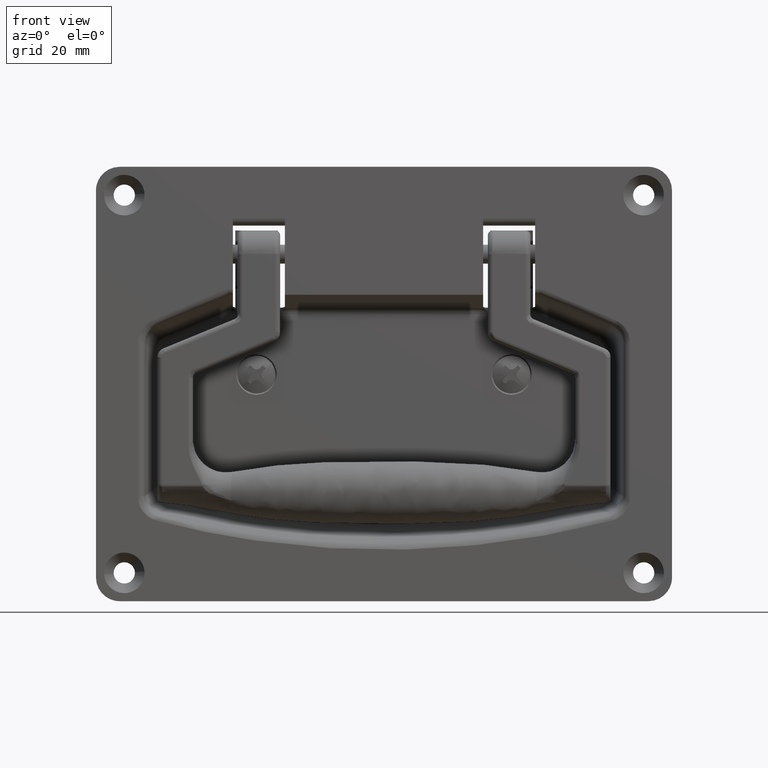
[diagram: clean part render]
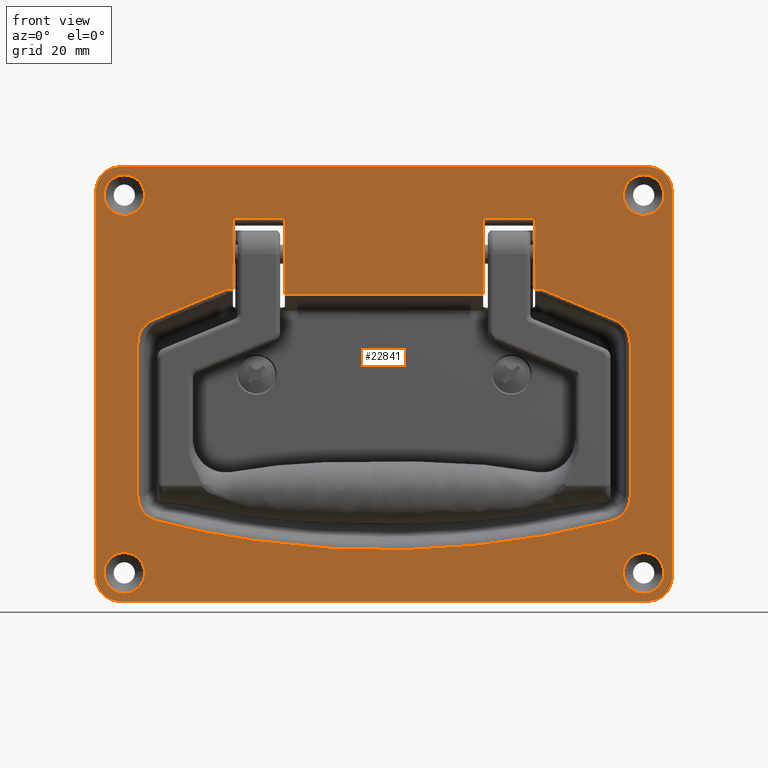
[diagram: same view with one face highlighted and labeled with its STEP entity id]
A machine part, front view. The second image highlights one B-rep face of the part: STEP entity #22841.
In plain terms, the highlighted face is a freeform B-spline surface patch.
Its self-contained STEP definition (entity closure, byte-faithful):
#14363=CARTESIAN_POINT('',(-6.500000000039236,50.713255464931720,-67.162625888071375));
#14364=VERTEX_POINT('',#14363);
#14370=CARTESIAN_POINT('',(-6.500000000000000,55.0,-63.200000000000003));
#14371=VERTEX_POINT('',#14370);
#14372=CARTESIAN_POINT('',(-6.500000000000000,55.0,-63.200000000000003));
#14373=CARTESIAN_POINT('',(-6.500000000000001,51.025120886420012,-63.200000000000017));
#14374=CARTESIAN_POINT('',(-6.500000000039237,50.713255464931727,-67.162625888071375));
#14382=(BOUNDED_CURVE()B_SPLINE_CURVE(2,(#14372,#14373,#14374),.UNSPECIFIED.,.F.,.U.)B_SPLINE_CURVE_WITH_KNOTS((3,3),(0.0,0.236331300609107),.UNSPECIFIED.)CURVE()GEOMETRIC_REPRESENTATION_ITEM()RATIONAL_B_SPLINE_CURVE((1.0,0.723120658632916,0.969723356122440))REPRESENTATION_ITEM(''));
#14383=EDGE_CURVE('',#14371,#14364,#14382,.T.);
#14385=CARTESIAN_POINT('',(-6.500000000039233,59.286744535068280,-67.837374111928625));
#14386=VERTEX_POINT('',#14385);
#14387=CARTESIAN_POINT('',(-6.500000000039233,59.286744535068273,-67.837374111928625));
#14388=CARTESIAN_POINT('',(-6.499999999999999,59.299999999999997,-67.668947460430161));
#14389=CARTESIAN_POINT('',(-6.500000000000000,59.299999999999997,-67.500000000000000));
#14390=CARTESIAN_POINT('',(-6.500000000000000,59.299999999999997,-63.200000000000003));
#14391=CARTESIAN_POINT('',(-6.500000000000000,55.0,-63.200000000000003));
#14399=(BOUNDED_CURVE()B_SPLINE_CURVE(2,(#14387,#14388,#14389,#14390,#14391),.UNSPECIFIED.,.F.,.U.)B_SPLINE_CURVE_WITH_KNOTS((3,2,3),(0.736331300609107,0.750000000000000,1.0),.UNSPECIFIED.)CURVE()GEOMETRIC_REPRESENTATION_ITEM()RATIONAL_B_SPLINE_CURVE((0.969723356122440,0.983986122553632,1.0,0.707106781186547,1.0))REPRESENTATION_ITEM(''));
#14400=EDGE_CURVE('',#14386,#14371,#14399,.T.);
#14433=CARTESIAN_POINT('',(-6.500000000000000,55.0,-71.799999999999997));
#14434=VERTEX_POINT('',#14433);
#14435=CARTESIAN_POINT('',(-6.500000000000000,55.0,-71.799999999999997));
#14436=CARTESIAN_POINT('',(-6.500000000000002,58.974879113579981,-71.799999999999983));
#14437=CARTESIAN_POINT('',(-6.500000000039233,59.286744535068280,-67.837374111928625));
#14445=(BOUNDED_CURVE()B_SPLINE_CURVE(2,(#14435,#14436,#14437),.UNSPECIFIED.,.F.,.U.)B_SPLINE_CURVE_WITH_KNOTS((3,3),(0.500000000000000,0.736331300609107),.UNSPECIFIED.)CURVE()GEOMETRIC_REPRESENTATION_ITEM()RATIONAL_B_SPLINE_CURVE((1.0,0.723120658632916,0.969723356122440))REPRESENTATION_ITEM(''));
#14446=EDGE_CURVE('',#14434,#14386,#14445,.T.);
#14448=CARTESIAN_POINT('',(-6.500000000039237,50.713255464931727,-67.162625888071375));
#14449=CARTESIAN_POINT('',(-6.500000000000001,50.700000000000003,-67.331052539569825));
#14450=CARTESIAN_POINT('',(-6.500000000000000,50.700000000000003,-67.500000000000000));
#14451=CARTESIAN_POINT('',(-6.500000000000000,50.700000000000010,-71.799999999999983));
#14452=CARTESIAN_POINT('',(-6.500000000000000,55.0,-71.799999999999997));
#14460=(BOUNDED_CURVE()B_SPLINE_CURVE(2,(#14448,#14449,#14450,#14451,#14452),.UNSPECIFIED.,.F.,.U.)B_SPLINE_CURVE_WITH_KNOTS((3,2,3),(0.236331300609107,0.250000000000000,0.500000000000000),.UNSPECIFIED.)CURVE()GEOMETRIC_REPRESENTATION_ITEM()RATIONAL_B_SPLINE_CURVE((0.969723356122440,0.983986122553632,1.0,0.707106781186547,1.0))REPRESENTATION_ITEM(''));
#14461=EDGE_CURVE('',#14364,#14434,#14460,.T.);
#14687=CARTESIAN_POINT('',(-6.500000000039234,50.713255464931720,12.837374111928639));
#14688=VERTEX_POINT('',#14687);
#14694=CARTESIAN_POINT('',(-6.500000000000000,55.0,16.800000000000001));
#14695=VERTEX_POINT('',#14694);
#14696=CARTESIAN_POINT('',(-6.500000000000000,55.0,16.800000000000001));
#14697=CARTESIAN_POINT('',(-6.500000000000000,51.025120886420012,16.800000000000011));
#14698=CARTESIAN_POINT('',(-6.500000000039234,50.713255464931720,12.837374111928636));
#14706=(BOUNDED_CURVE()B_SPLINE_CURVE(2,(#14696,#14697,#14698),.UNSPECIFIED.,.F.,.U.)B_SPLINE_CURVE_WITH_KNOTS((3,3),(0.0,0.236331300609107),.UNSPECIFIED.)CURVE()GEOMETRIC_REPRESENTATION_ITEM()RATIONAL_B_SPLINE_CURVE((1.0,0.723120658632916,0.969723356122440))REPRESENTATION_ITEM(''));
#14707=EDGE_CURVE('',#14695,#14688,#14706,.T.);
#14709=CARTESIAN_POINT('',(-6.500000000039234,59.286744535068280,12.162625888071361));
#14710=VERTEX_POINT('',#14709);
#14711=CARTESIAN_POINT('',(-6.500000000039234,59.286744535068280,12.162625888071364));
#14712=CARTESIAN_POINT('',(-6.500000000000000,59.299999999999997,12.331052539569830));
#14713=CARTESIAN_POINT('',(-6.500000000000000,59.299999999999997,12.500000000000000));
#14714=CARTESIAN_POINT('',(-6.500000000000000,59.299999999999997,16.800000000000004));
#14715=CARTESIAN_POINT('',(-6.500000000000000,55.0,16.800000000000001));
#14723=(BOUNDED_CURVE()B_SPLINE_CURVE(2,(#14711,#14712,#14713,#14714,#14715),.UNSPECIFIED.,.F.,.U.)B_SPLINE_CURVE_WITH_KNOTS((3,2,3),(0.736331300609107,0.750000000000000,1.0),.UNSPECIFIED.)CURVE()GEOMETRIC_REPRESENTATION_ITEM()RATIONAL_B_SPLINE_CURVE((0.969723356122440,0.983986122553632,1.0,0.707106781186547,1.0))REPRESENTATION_ITEM(''));
#14724=EDGE_CURVE('',#14710,#14695,#14723,.T.);
#14757=CARTESIAN_POINT('',(-6.500000000000000,55.0,8.200000000000001));
#14758=VERTEX_POINT('',#14757);
#14759=CARTESIAN_POINT('',(-6.500000000000000,55.0,8.200000000000001));
#14760=CARTESIAN_POINT('',(-6.500000000000002,58.974879113579981,8.200000000000001));
#14761=CARTESIAN_POINT('',(-6.500000000039234,59.286744535068280,12.162625888071364));
#14769=(BOUNDED_CURVE()B_SPLINE_CURVE(2,(#14759,#14760,#14761),.UNSPECIFIED.,.F.,.U.)B_SPLINE_CURVE_WITH_KNOTS((3,3),(0.500000000000000,0.736331300609107),.UNSPECIFIED.)CURVE()GEOMETRIC_REPRESENTATION_ITEM()RATIONAL_B_SPLINE_CURVE((1.0,0.723120658632916,0.969723356122440))REPRESENTATION_ITEM(''));
#14770=EDGE_CURVE('',#14758,#14710,#14769,.T.);
#14772=CARTESIAN_POINT('',(-6.500000000039234,50.713255464931727,12.837374111928632));
#14773=CARTESIAN_POINT('',(-6.499999999999999,50.700000000000003,12.668947460430173));
#14774=CARTESIAN_POINT('',(-6.500000000000000,50.700000000000003,12.500000000000000));
#14775=CARTESIAN_POINT('',(-6.500000000000000,50.700000000000010,8.200000000000001));
#14776=CARTESIAN_POINT('',(-6.500000000000000,55.0,8.200000000000001));
#14784=(BOUNDED_CURVE()B_SPLINE_CURVE(2,(#14772,#14773,#14774,#14775,#14776),.UNSPECIFIED.,.F.,.U.)B_SPLINE_CURVE_WITH_KNOTS((3,2,3),(0.236331300609107,0.250000000000000,0.500000000000000),.UNSPECIFIED.)CURVE()GEOMETRIC_REPRESENTATION_ITEM()RATIONAL_B_SPLINE_CURVE((0.969723356122440,0.983986122553632,1.0,0.707106781186547,1.0))REPRESENTATION_ITEM(''));
#14785=EDGE_CURVE('',#14688,#14758,#14784,.T.);
#15015=CARTESIAN_POINT('',(-6.500000000082057,-50.730059036630188,-66.992452790331669));
#15016=VERTEX_POINT('',#15015);
#15022=CARTESIAN_POINT('',(-6.500000000000000,-55.0,-71.799999999999997));
#15023=VERTEX_POINT('',#15022);
#15024=CARTESIAN_POINT('',(-6.500000000082058,-50.730059036630180,-66.992452790331669));
#15025=CARTESIAN_POINT('',(-6.500000000000000,-50.699999999999996,-67.245336284855497));
#15026=CARTESIAN_POINT('',(-6.500000000000000,-50.700000000000003,-67.500000000000000));
#15027=CARTESIAN_POINT('',(-6.500000000000000,-50.700000000000010,-71.799999999999983));
#15028=CARTESIAN_POINT('',(-6.500000000000000,-55.0,-71.799999999999997));
#15036=(BOUNDED_CURVE()B_SPLINE_CURVE(2,(#15024,#15025,#15026,#15027,#15028),.UNSPECIFIED.,.F.,.U.)B_SPLINE_CURVE_WITH_KNOTS((3,2,3),(0.229562473465411,0.250000000000000,0.500000000000000),.UNSPECIFIED.)CURVE()GEOMETRIC_REPRESENTATION_ITEM()RATIONAL_B_SPLINE_CURVE((0.956026754089427,0.976055948274796,1.0,0.707106781186547,1.0))REPRESENTATION_ITEM(''));
#15037=EDGE_CURVE('',#15016,#15023,#15036,.T.);
#15039=CARTESIAN_POINT('',(-6.500000000001966,-59.291979633215071,-67.762508720015006));
#15040=VERTEX_POINT('',#15039);
#15041=CARTESIAN_POINT('',(-6.500000000000000,-55.0,-71.799999999999997));
#15042=CARTESIAN_POINT('',(-6.500000000000000,-59.045036087666190,-71.799999999999997));
#15043=CARTESIAN_POINT('',(-6.500000000001966,-59.291979633215071,-67.762508720015006));
#15051=(BOUNDED_CURVE()B_SPLINE_CURVE(2,(#15041,#15042,#15043),.UNSPECIFIED.,.F.,.U.)B_SPLINE_CURVE_WITH_KNOTS((3,3),(0.500000000000000,0.739332962240764),.UNSPECIFIED.)CURVE()GEOMETRIC_REPRESENTATION_ITEM()RATIONAL_B_SPLINE_CURVE((1.0,0.719603993284577,0.976072041670620))REPRESENTATION_ITEM(''));
#15052=EDGE_CURVE('',#15023,#15040,#15051,.T.);
#15085=CARTESIAN_POINT('',(-6.500000000000000,-55.0,-63.200000000000003));
#15086=VERTEX_POINT('',#15085);
#15087=CARTESIAN_POINT('',(-6.500000000001966,-59.291979633215078,-67.762508720015006));
#15088=CARTESIAN_POINT('',(-6.500000000000000,-59.299999999999997,-67.631376882198964));
#15089=CARTESIAN_POINT('',(-6.500000000000000,-59.299999999999997,-67.500000000000000));
#15090=CARTESIAN_POINT('',(-6.500000000000000,-59.299999999999997,-63.200000000000003));
#15091=CARTESIAN_POINT('',(-6.500000000000000,-55.0,-63.200000000000003));
#15099=(BOUNDED_CURVE()B_SPLINE_CURVE(2,(#15087,#15088,#15089,#15090,#15091),.UNSPECIFIED.,.F.,.U.)B_SPLINE_CURVE_WITH_KNOTS((3,2,3),(0.739332962240763,0.750000000000000,1.0),.UNSPECIFIED.)CURVE()GEOMETRIC_REPRESENTATION_ITEM()RATIONAL_B_SPLINE_CURVE((0.976072041670618,0.987502787901969,1.0,0.707106781186547,1.0))REPRESENTATION_ITEM(''));
#15100=EDGE_CURVE('',#15040,#15086,#15099,.T.);
#15102=CARTESIAN_POINT('',(-6.500000000000000,-55.0,-63.200000000000003));
#15103=CARTESIAN_POINT('',(-6.500000000000001,-51.180849539552284,-63.200000000000017));
#15104=CARTESIAN_POINT('',(-6.500000000082058,-50.730059036630180,-66.992452790331669));
#15112=(BOUNDED_CURVE()B_SPLINE_CURVE(2,(#15102,#15103,#15104),.UNSPECIFIED.,.F.,.U.)B_SPLINE_CURVE_WITH_KNOTS((3,3),(0.0,0.229562473465411),.UNSPECIFIED.)CURVE()GEOMETRIC_REPRESENTATION_ITEM()RATIONAL_B_SPLINE_CURVE((1.0,0.731050832911752,0.956026754089427))REPRESENTATION_ITEM(''));
#15113=EDGE_CURVE('',#15086,#15016,#15112,.T.);
#16813=CARTESIAN_POINT('',(-6.500000000082057,-50.730059036630180,13.007547209668321));
#16814=VERTEX_POINT('',#16813);
#16820=CARTESIAN_POINT('',(-6.500000000000000,-55.0,8.200000000000001));
#16821=VERTEX_POINT('',#16820);
#16822=CARTESIAN_POINT('',(-6.500000000082057,-50.730059036630180,13.007547209668321));
#16823=CARTESIAN_POINT('',(-6.500000000000000,-50.699999999999996,12.754663715144504));
#16824=CARTESIAN_POINT('',(-6.500000000000000,-50.700000000000003,12.500000000000000));
#16825=CARTESIAN_POINT('',(-6.500000000000000,-50.700000000000010,8.200000000000001));
#16826=CARTESIAN_POINT('',(-6.500000000000000,-55.0,8.200000000000001));
#16834=(BOUNDED_CURVE()B_SPLINE_CURVE(2,(#16822,#16823,#16824,#16825,#16826),.UNSPECIFIED.,.F.,.U.)B_SPLINE_CURVE_WITH_KNOTS((3,2,3),(0.229562473465411,0.250000000000000,0.500000000000000),.UNSPECIFIED.)CURVE()GEOMETRIC_REPRESENTATION_ITEM()RATIONAL_B_SPLINE_CURVE((0.956026754089427,0.976055948274796,1.0,0.707106781186547,1.0))REPRESENTATION_ITEM(''));
#16835=EDGE_CURVE('',#16814,#16821,#16834,.T.);
#16837=CARTESIAN_POINT('',(-6.500000000001966,-59.291979633215071,12.237491279985001));
#16838=VERTEX_POINT('',#16837);
#16839=CARTESIAN_POINT('',(-6.500000000000000,-55.0,8.200000000000001));
#16840=CARTESIAN_POINT('',(-6.500000000000001,-59.045036087666134,8.200000000000001));
#16841=CARTESIAN_POINT('',(-6.500000000001966,-59.291979633215064,12.237491279985003));
#16849=(BOUNDED_CURVE()B_SPLINE_CURVE(2,(#16839,#16840,#16841),.UNSPECIFIED.,.F.,.U.)B_SPLINE_CURVE_WITH_KNOTS((3,3),(0.500000000000000,0.739332962240761),.UNSPECIFIED.)CURVE()GEOMETRIC_REPRESENTATION_ITEM()RATIONAL_B_SPLINE_CURVE((1.0,0.719603993284580,0.976072041670615))REPRESENTATION_ITEM(''));
#16850=EDGE_CURVE('',#16821,#16838,#16849,.T.);
#16883=CARTESIAN_POINT('',(-6.500000000000000,-55.0,16.800000000000001));
#16884=VERTEX_POINT('',#16883);
#16885=CARTESIAN_POINT('',(-6.500000000001966,-59.291979633215071,12.237491279984996));
#16886=CARTESIAN_POINT('',(-6.500000000000001,-59.300000000000004,12.368623117801029));
#16887=CARTESIAN_POINT('',(-6.500000000000000,-59.299999999999997,12.500000000000000));
#16888=CARTESIAN_POINT('',(-6.500000000000000,-59.299999999999997,16.800000000000004));
#16889=CARTESIAN_POINT('',(-6.500000000000000,-55.0,16.800000000000001));
#16897=(BOUNDED_CURVE()B_SPLINE_CURVE(2,(#16885,#16886,#16887,#16888,#16889),.UNSPECIFIED.,.F.,.U.)B_SPLINE_CURVE_WITH_KNOTS((3,2,3),(0.739332962240762,0.750000000000000,1.0),.UNSPECIFIED.)CURVE()GEOMETRIC_REPRESENTATION_ITEM()RATIONAL_B_SPLINE_CURVE((0.976072041670617,0.987502787901969,1.0,0.707106781186547,1.0))REPRESENTATION_ITEM(''));
#16898=EDGE_CURVE('',#16838,#16884,#16897,.T.);
#16900=CARTESIAN_POINT('',(-6.500000000000000,-55.0,16.800000000000001));
#16901=CARTESIAN_POINT('',(-6.500000000000000,-51.180849539552291,16.800000000000004));
#16902=CARTESIAN_POINT('',(-6.500000000082058,-50.730059036630173,13.007547209668322));
#16910=(BOUNDED_CURVE()B_SPLINE_CURVE(2,(#16900,#16901,#16902),.UNSPECIFIED.,.F.,.U.)B_SPLINE_CURVE_WITH_KNOTS((3,3),(0.0,0.229562473465411),.UNSPECIFIED.)CURVE()GEOMETRIC_REPRESENTATION_ITEM()RATIONAL_B_SPLINE_CURVE((1.0,0.731050832911752,0.956026754089427))REPRESENTATION_ITEM(''));
#16911=EDGE_CURVE('',#16884,#16814,#16910,.T.);
#17199=CARTESIAN_POINT('',(-6.500000000000000,-33.225772175521499,-7.370277851344939));
#17200=VERTEX_POINT('',#17199);
#18284=CARTESIAN_POINT('',(-6.500000000000000,33.225795742680553,-7.370277851344950));
#18285=VERTEX_POINT('',#18284);
#19414=CARTESIAN_POINT('',(-6.500000000000000,-52.129722148654992,-51.285622496030598));
#19415=VERTEX_POINT('',#19414);
#19466=CARTESIAN_POINT('',(-6.500000000000000,-48.090762855504799,-56.506022607110999));
#19467=VERTEX_POINT('',#19466);
#19481=CARTESIAN_POINT('',(-6.500000000000000,-52.129722148654992,-51.285622496030598));
#19482=CARTESIAN_POINT('',(-6.499999999999999,-52.129722148654999,-51.584449485097807));
#19483=CARTESIAN_POINT('',(-6.500000000000001,-52.105601823009643,-51.879610693687077));
#19484=CARTESIAN_POINT('',(-6.500000000000000,-52.033974205564050,-52.316965291020281));
#19485=CARTESIAN_POINT('',(-6.500000000000001,-52.004161893762472,-52.461847943300327));
#19486=CARTESIAN_POINT('',(-6.499999999999999,-51.950370079937450,-52.677792964587873));
#19487=CARTESIAN_POINT('',(-6.500000000000000,-51.930925417943961,-52.749544533579567));
#19488=CARTESIAN_POINT('',(-6.500000000000001,-51.888956579506427,-52.892579650354627));
#19489=CARTESIAN_POINT('',(-6.500000000000000,-51.866401440287142,-52.963932740059448));
#19490=CARTESIAN_POINT('',(-6.500000000000000,-51.746880391489633,-53.316405716306051));
#19491=CARTESIAN_POINT('',(-6.500000000000002,-51.629166699372547,-53.587130618678472));
#19492=CARTESIAN_POINT('',(-6.500000000000001,-51.420220041531259,-53.976729471847072));
#19493=CARTESIAN_POINT('',(-6.500000000000000,-51.345148665346343,-54.103834192055189));
#19494=CARTESIAN_POINT('',(-6.500000000000003,-51.224264432661698,-54.290275878554873));
#19495=CARTESIAN_POINT('',(-6.500000000000003,-51.182588481506677,-54.351719686743927));
#19496=CARTESIAN_POINT('',(-6.500000000000004,-51.096428991404089,-54.473177455663752));
#19497=CARTESIAN_POINT('',(-6.500000000000002,-51.051846192142662,-54.533312007424030));
#19498=CARTESIAN_POINT('',(-6.500000000000001,-50.823778287127460,-54.827805528837921));
#19499=CARTESIAN_POINT('',(-6.500000000000000,-50.624034254906228,-55.045202424816353));
#19500=CARTESIAN_POINT('',(-6.500000000000001,-50.299425412666999,-55.344992125715137));
#19501=CARTESIAN_POINT('',(-6.500000000000002,-50.187035857637078,-55.440515499635708));
#19502=CARTESIAN_POINT('',(-6.500000000000002,-50.012103612901292,-55.577119198162897));
#19503=CARTESIAN_POINT('',(-6.500000000000003,-49.952733607290810,-55.621538865129267));
#19504=CARTESIAN_POINT('',(-6.500000000000003,-49.831847874963202,-55.708119765140339));
#19505=CARTESIAN_POINT('',(-6.500000000000002,-49.770199244229708,-55.750366785543029));
#19506=CARTESIAN_POINT('',(-6.500000000000001,-49.458157858145732,-55.954778586927247));
#19507=CARTESIAN_POINT('',(-6.499999999999998,-49.198328175066443,-56.095525069121550));
#19508=CARTESIAN_POINT('',(-6.500000000000001,-48.659252097816093,-56.333633841738447));
#19509=CARTESIAN_POINT('',(-6.500000000000002,-48.380003089244191,-56.430990290611497));
#19510=CARTESIAN_POINT('',(-6.500000000000000,-48.090762855504799,-56.506022607110999));
#19511=B_SPLINE_CURVE_WITH_KNOTS('',3,(#19481,#19482,#19483,#19484,#19485,#19486,#19487,#19488,#19489,#19490,#19491,#19492,#19493,#19494,#19495,#19496,#19497,#19498,#19499,#19500,#19501,#19502,#19503,#19504,#19505,#19506,#19507,#19508,#19509,#19510),.UNSPECIFIED.,.F.,.U.,(4,2,2,2,2,2,2,2,2,2,2,2,2,2,4),(0.0,0.125000000000000,0.187499999999999,0.218749999999999,0.249999999999998,0.374999999999995,0.437499999999993,0.468749999999994,0.499999999999994,0.624999999999999,0.687500000000001,0.718750000000002,0.750000000000003,0.875000000000001,1.0),.UNSPECIFIED.);
#19512=EDGE_CURVE('',#19415,#19467,#19511,.T.);
#19536=CARTESIAN_POINT('',(-6.500000000000000,48.096454066172598,-56.453584164132607));
#19537=VERTEX_POINT('',#19536);
#19551=CARTESIAN_POINT('',(-6.500000000000000,-48.090762855504877,-56.506022607110850));
#19552=CARTESIAN_POINT('',(-6.500000000000000,0.009662437591695,-68.983838323744806));
#19553=CARTESIAN_POINT('',(-6.500000000000000,48.096454066172562,-56.453584164132430));
#19561=(BOUNDED_CURVE()B_SPLINE_CURVE(2,(#19551,#19552,#19553),.UNSPECIFIED.,.F.,.U.)CURVE()GEOMETRIC_REPRESENTATION_ITEM()QUASI_UNIFORM_CURVE()RATIONAL_B_SPLINE_CURVE((1.0,0.967823993019659,1.0))REPRESENTATION_ITEM(''));
#19562=EDGE_CURVE('',#19467,#19537,#19561,.T.);
#19595=CARTESIAN_POINT('',(-6.500000000000000,-52.129722148654992,-18.842165819807899));
#19596=VERTEX_POINT('',#19595);
#19618=CARTESIAN_POINT('',(-6.500000000000000,-52.129722148654992,-18.842165819807899));
#19619=CARTESIAN_POINT('',(-6.500000000000000,-52.129722148654992,-51.285622496030598));
#19620=QUASI_UNIFORM_CURVE('',1,(#19618,#19619),.UNSPECIFIED.,.F.,.U.);
#19621=EDGE_CURVE('',#19596,#19415,#19620,.T.);
#19726=CARTESIAN_POINT('',(-6.500000000000000,52.129722148655098,-51.234663731936813));
#19727=VERTEX_POINT('',#19726);
#19741=CARTESIAN_POINT('',(-6.500000000000000,48.096454066172598,-56.453584164132607));
#19742=CARTESIAN_POINT('',(-6.500000000000003,48.385381804223762,-56.378296587878708));
#19743=CARTESIAN_POINT('',(-6.500000000000003,48.664708218278612,-56.280625133893032));
#19744=CARTESIAN_POINT('',(-6.500000000000002,49.069584771474183,-56.101215700462653));
#19745=CARTESIAN_POINT('',(-6.500000000000000,49.202180084115312,-56.035902362275174));
#19746=CARTESIAN_POINT('',(-6.500000000000002,49.397460344114478,-55.929509929531648));
#19747=CARTESIAN_POINT('',(-6.500000000000001,49.461950916942079,-55.892640348138187));
#19748=CARTESIAN_POINT('',(-6.500000000000000,49.589705872877261,-55.816042529526342));
#19749=CARTESIAN_POINT('',(-6.500000000000001,49.653016172832181,-55.776275176733442));
#19750=CARTESIAN_POINT('',(-6.500000000000001,49.963713160735971,-55.572011742179583));
#19751=CARTESIAN_POINT('',(-6.500000000000001,50.195862545104937,-55.390075883127963));
#19752=CARTESIAN_POINT('',(-6.500000000000001,50.520036136428409,-55.090018734849892));
#19753=CARTESIAN_POINT('',(-6.500000000000000,50.624065970021007,-54.985451978740699));
#19754=CARTESIAN_POINT('',(-6.500000000000001,50.773961227939253,-54.821658975049083));
#19755=CARTESIAN_POINT('',(-6.500000000000002,50.822900152733943,-54.765902755741656));
#19756=CARTESIAN_POINT('',(-6.500000000000000,50.918691985717018,-54.652035172991113));
#19757=CARTESIAN_POINT('',(-6.500000000000000,50.965632846854888,-54.593801853143233));
#19758=CARTESIAN_POINT('',(-6.500000000000001,51.193048694447768,-54.299240367363282));
#19759=CARTESIAN_POINT('',(-6.500000000000002,51.353067797621151,-54.051448625863202));
#19760=CARTESIAN_POINT('',(-6.500000000000000,51.561410725547091,-53.662203603868619));
#19761=CARTESIAN_POINT('',(-6.500000000000001,51.625550674179713,-53.529514211574778));
#19762=CARTESIAN_POINT('',(-6.500000000000000,51.713712125481393,-53.326020376470566));
#19763=CARTESIAN_POINT('',(-6.500000000000000,51.741756253787003,-53.257444914769579));
#19764=CARTESIAN_POINT('',(-6.500000000000000,51.795123881301961,-53.118786460861593));
#19765=CARTESIAN_POINT('',(-6.500000000000000,51.820497595974707,-53.048551320510533));
#19766=CARTESIAN_POINT('',(-6.500000000000002,51.939805367247963,-52.695460423852879));
#19767=CARTESIAN_POINT('',(-6.500000000000003,52.010682426825113,-52.408846038068660));
#19768=CARTESIAN_POINT('',(-6.500000000000003,52.105643937641076,-51.827729349688703));
#19769=CARTESIAN_POINT('',(-6.500000000000000,52.129722148655212,-51.533225995166703));
#19770=CARTESIAN_POINT('',(-6.500000000000000,52.129722148655098,-51.234663731936813));
#19771=B_SPLINE_CURVE_WITH_KNOTS('',3,(#19741,#19742,#19743,#19744,#19745,#19746,#19747,#19748,#19749,#19750,#19751,#19752,#19753,#19754,#19755,#19756,#19757,#19758,#19759,#19760,#19761,#19762,#19763,#19764,#19765,#19766,#19767,#19768,#19769,#19770),.UNSPECIFIED.,.F.,.U.,(4,2,2,2,2,2,2,2,2,2,2,2,2,2,4),(0.0,0.125000000000009,0.187500000000013,0.218750000000015,0.250000000000016,0.375000000000018,0.437500000000018,0.468750000000018,0.500000000000017,0.625000000000013,0.687500000000012,0.718750000000012,0.750000000000013,0.875000000000006,1.0),.UNSPECIFIED.);
#19772=EDGE_CURVE('',#19537,#19727,#19771,.T.);
#19849=CARTESIAN_POINT('',(-6.500000000000000,-48.810774751220499,-13.863809441253560));
#19850=VERTEX_POINT('',#19849);
#19880=CARTESIAN_POINT('',(-6.500000000000000,-48.810774751220492,-13.863809441253560));
#19881=CARTESIAN_POINT('',(-6.500000000000000,-52.129722148654999,-15.246657449510607));
#19882=CARTESIAN_POINT('',(-6.500000000000000,-52.129722148655013,-18.842165819807889));
#19890=(BOUNDED_CURVE()B_SPLINE_CURVE(2,(#19880,#19881,#19882),.UNSPECIFIED.,.F.,.U.)CURVE()GEOMETRIC_REPRESENTATION_ITEM()QUASI_UNIFORM_CURVE()RATIONAL_B_SPLINE_CURVE((1.0,0.839128611096108,1.0))REPRESENTATION_ITEM(''));
#19891=EDGE_CURVE('',#19850,#19596,#19890,.T.);
#19912=CARTESIAN_POINT('',(-6.500000000000000,52.129722148655098,-18.842578097844900));
#19913=VERTEX_POINT('',#19912);
#19927=CARTESIAN_POINT('',(-6.500000000000000,52.129722148655098,-51.234663731936813));
#19928=CARTESIAN_POINT('',(-6.500000000000000,52.129722148655098,-18.842578097844900));
#19929=QUASI_UNIFORM_CURVE('',1,(#19927,#19928),.UNSPECIFIED.,.F.,.U.);
#19930=EDGE_CURVE('',#19727,#19913,#19929,.T.);
#19955=CARTESIAN_POINT('',(-6.500000000000000,-33.225772175521499,-7.370277851344939));
#19956=CARTESIAN_POINT('',(-6.500000000000000,-48.810774751220499,-13.863809441253560));
#19957=QUASI_UNIFORM_CURVE('',1,(#19955,#19956),.UNSPECIFIED.,.F.,.U.);
#19958=EDGE_CURVE('',#17200,#19850,#19957,.T.);
#20010=CARTESIAN_POINT('',(-6.500000000000000,48.810889636572000,-13.864269588124801));
#20011=VERTEX_POINT('',#20010);
#20025=CARTESIAN_POINT('',(-6.500000000000000,52.129722148655112,-18.842578097844921));
#20026=CARTESIAN_POINT('',(-6.499999999999999,52.129722148655127,-15.247159614707972));
#20027=CARTESIAN_POINT('',(-6.500000000000000,48.810889636572028,-13.864269588124840));
#20035=(BOUNDED_CURVE()B_SPLINE_CURVE(2,(#20025,#20026,#20027),.UNSPECIFIED.,.F.,.U.)CURVE()GEOMETRIC_REPRESENTATION_ITEM()QUASI_UNIFORM_CURVE()RATIONAL_B_SPLINE_CURVE((1.0,0.839134713417767,1.0))REPRESENTATION_ITEM(''));
#20036=EDGE_CURVE('',#19913,#20011,#20035,.T.);
#20077=CARTESIAN_POINT('',(-6.500000000000000,-32.0,-7.370277851344939));
#20078=VERTEX_POINT('',#20077);
#20079=CARTESIAN_POINT('',(-6.500000000000000,-32.0,-7.370277851344939));
#20080=CARTESIAN_POINT('',(-6.500000000000000,-33.225772175521499,-7.370277851344939));
#20081=QUASI_UNIFORM_CURVE('',1,(#20079,#20080),.UNSPECIFIED.,.F.,.U.);
#20082=EDGE_CURVE('',#20078,#17200,#20081,.T.);
#20120=CARTESIAN_POINT('',(-6.500000000000000,48.810889636572000,-13.864269588124801));
#20121=CARTESIAN_POINT('',(-6.500000000000000,33.225795742680553,-7.370277851344950));
#20122=QUASI_UNIFORM_CURVE('',1,(#20120,#20121),.UNSPECIFIED.,.F.,.U.);
#20123=EDGE_CURVE('',#20011,#18285,#20122,.T.);
#20143=CARTESIAN_POINT('',(-6.500000000000000,31.999033365554549,-7.370277851344950));
#20144=VERTEX_POINT('',#20143);
#20145=CARTESIAN_POINT('',(-6.500000000000000,33.225795742680553,-7.370277851344950));
#20146=CARTESIAN_POINT('',(-6.500000000000000,31.999033365554549,-7.370277851344950));
#20147=QUASI_UNIFORM_CURVE('',1,(#20145,#20146),.UNSPECIFIED.,.F.,.U.);
#20148=EDGE_CURVE('',#18285,#20144,#20147,.T.);
#20190=CARTESIAN_POINT('',(-6.500000000000000,-21.0,7.544766295737710));
#20191=VERTEX_POINT('',#20190);
#20214=CARTESIAN_POINT('',(-6.500000000000000,-32.0,7.544766295737710));
#20215=VERTEX_POINT('',#20214);
#20231=CARTESIAN_POINT('',(-6.500000000000000,-21.0,7.544766295737710));
#20232=CARTESIAN_POINT('',(-6.500000000000000,-32.0,7.544766295737710));
#20233=QUASI_UNIFORM_CURVE('',1,(#20231,#20232),.UNSPECIFIED.,.F.,.U.);
#20234=EDGE_CURVE('',#20191,#20215,#20233,.T.);
#20255=CARTESIAN_POINT('',(-6.500000000000000,31.999033365554549,7.544766295737710));
#20256=VERTEX_POINT('',#20255);
#20279=CARTESIAN_POINT('',(-6.500000000000000,20.999033365554549,7.544766295737710));
#20280=VERTEX_POINT('',#20279);
#20296=CARTESIAN_POINT('',(-6.500000000000000,31.999033365554549,7.544766295737710));
#20297=CARTESIAN_POINT('',(-6.500000000000000,20.999033365554549,7.544766295737710));
#20298=QUASI_UNIFORM_CURVE('',1,(#20296,#20297),.UNSPECIFIED.,.F.,.U.);
#20299=EDGE_CURVE('',#20256,#20280,#20298,.T.);
#20579=CARTESIAN_POINT('',(-6.500000000000000,-32.0,7.544766295737710));
#20580=CARTESIAN_POINT('',(-6.500000000000000,-32.0,-7.370277851344939));
#20581=QUASI_UNIFORM_CURVE('',1,(#20579,#20580),.UNSPECIFIED.,.F.,.U.);
#20582=EDGE_CURVE('',#20215,#20078,#20581,.T.);
#20626=CARTESIAN_POINT('',(-6.500000000000000,-21.0,-8.599982227451600));
#20627=VERTEX_POINT('',#20626);
#20667=CARTESIAN_POINT('',(-6.500000000000000,-21.0,7.544766295737710));
#20668=CARTESIAN_POINT('',(-6.500000000000000,-21.0,-8.599982227451600));
#20669=QUASI_UNIFORM_CURVE('',1,(#20667,#20668),.UNSPECIFIED.,.F.,.U.);
#20670=EDGE_CURVE('',#20191,#20627,#20669,.T.);
#20726=CARTESIAN_POINT('',(-6.500000000000000,20.999033365554549,-8.599982227451610));
#20727=VERTEX_POINT('',#20726);
#20733=CARTESIAN_POINT('',(-6.500000000000000,20.999033365554549,7.544766295737710));
#20734=CARTESIAN_POINT('',(-6.500000000000000,20.999033365554549,-8.599982227451610));
#20735=QUASI_UNIFORM_CURVE('',1,(#20733,#20734),.UNSPECIFIED.,.F.,.U.);
#20736=EDGE_CURVE('',#20280,#20727,#20735,.T.);
#20819=CARTESIAN_POINT('',(-6.500000000000000,31.999033365554549,7.544766295737710));
#20820=CARTESIAN_POINT('',(-6.500000000000000,31.999033365554549,-7.370277851344950));
#20821=QUASI_UNIFORM_CURVE('',1,(#20819,#20820),.UNSPECIFIED.,.F.,.U.);
#20822=EDGE_CURVE('',#20256,#20144,#20821,.T.);
#22046=CARTESIAN_POINT('',(-6.500000000000000,-56.0,18.500000000000000));
#22047=VERTEX_POINT('',#22046);
#22053=CARTESIAN_POINT('',(-6.500000000000000,-61.0,13.500000000000000));
#22054=VERTEX_POINT('',#22053);
#22055=CARTESIAN_POINT('',(-6.500000000000000,-61.0,13.500000000000000));
#22056=CARTESIAN_POINT('',(-6.500000000000001,-60.999999999999993,18.500000000000000));
#22057=CARTESIAN_POINT('',(-6.500000000000000,-56.0,18.500000000000000));
#22065=(BOUNDED_CURVE()B_SPLINE_CURVE(2,(#22055,#22056,#22057),.UNSPECIFIED.,.F.,.U.)CURVE()GEOMETRIC_REPRESENTATION_ITEM()QUASI_UNIFORM_CURVE()RATIONAL_B_SPLINE_CURVE((1.0,0.707106781186548,1.0))REPRESENTATION_ITEM(''));
#22066=EDGE_CURVE('',#22054,#22047,#22065,.T.);
#22089=CARTESIAN_POINT('',(-6.500000000000000,-61.0,-68.500000000000000));
#22090=VERTEX_POINT('',#22089);
#22091=CARTESIAN_POINT('',(-6.500000000000000,-61.0,-68.500000000000000));
#22092=CARTESIAN_POINT('',(-6.500000000000000,-61.0,13.500000000000000));
#22093=QUASI_UNIFORM_CURVE('',1,(#22091,#22092),.UNSPECIFIED.,.F.,.U.);
#22094=EDGE_CURVE('',#22090,#22054,#22093,.T.);
#22134=CARTESIAN_POINT('',(-6.500000000000000,-56.0,-73.500000000000000));
#22135=VERTEX_POINT('',#22134);
#22136=CARTESIAN_POINT('',(-6.500000000000000,-56.0,-73.500000000000014));
#22137=CARTESIAN_POINT('',(-6.500000000000001,-60.999999999999993,-73.500000000000014));
#22138=CARTESIAN_POINT('',(-6.500000000000000,-61.0,-68.500000000000000));
#22146=(BOUNDED_CURVE()B_SPLINE_CURVE(2,(#22136,#22137,#22138),.UNSPECIFIED.,.F.,.U.)CURVE()GEOMETRIC_REPRESENTATION_ITEM()QUASI_UNIFORM_CURVE()RATIONAL_B_SPLINE_CURVE((1.0,0.707106781186548,1.0))REPRESENTATION_ITEM(''));
#22147=EDGE_CURVE('',#22135,#22090,#22146,.T.);
#22170=CARTESIAN_POINT('',(-6.500000000000000,56.0,-73.500000000000000));
#22171=VERTEX_POINT('',#22170);
#22172=CARTESIAN_POINT('',(-6.500000000000000,56.0,-73.500000000000000));
#22173=CARTESIAN_POINT('',(-6.500000000000000,-56.0,-73.500000000000000));
#22174=QUASI_UNIFORM_CURVE('',1,(#22172,#22173),.UNSPECIFIED.,.F.,.U.);
#22175=EDGE_CURVE('',#22171,#22135,#22174,.T.);
#22215=CARTESIAN_POINT('',(-6.500000000000000,61.0,-68.500000000000000));
#22216=VERTEX_POINT('',#22215);
#22217=CARTESIAN_POINT('',(-6.500000000000000,61.0,-68.500000000000000));
#22218=CARTESIAN_POINT('',(-6.500000000000001,60.999999999999993,-73.500000000000014));
#22219=CARTESIAN_POINT('',(-6.500000000000000,56.0,-73.500000000000014));
#22227=(BOUNDED_CURVE()B_SPLINE_CURVE(2,(#22217,#22218,#22219),.UNSPECIFIED.,.F.,.U.)CURVE()GEOMETRIC_REPRESENTATION_ITEM()QUASI_UNIFORM_CURVE()RATIONAL_B_SPLINE_CURVE((1.0,0.707106781186548,1.0))REPRESENTATION_ITEM(''));
#22228=EDGE_CURVE('',#22216,#22171,#22227,.T.);
#22251=CARTESIAN_POINT('',(-6.500000000000000,61.0,13.500000000000000));
#22252=VERTEX_POINT('',#22251);
#22253=CARTESIAN_POINT('',(-6.500000000000000,61.0,13.500000000000000));
#22254=CARTESIAN_POINT('',(-6.500000000000000,61.0,-68.500000000000000));
#22255=QUASI_UNIFORM_CURVE('',1,(#22253,#22254),.UNSPECIFIED.,.F.,.U.);
#22256=EDGE_CURVE('',#22252,#22216,#22255,.T.);
#22296=CARTESIAN_POINT('',(-6.500000000000000,56.0,18.500000000000000));
#22297=VERTEX_POINT('',#22296);
#22298=CARTESIAN_POINT('',(-6.500000000000000,56.0,18.500000000000000));
#22299=CARTESIAN_POINT('',(-6.500000000000001,60.999999999999993,18.500000000000000));
#22300=CARTESIAN_POINT('',(-6.500000000000000,61.0,13.500000000000000));
#22308=(BOUNDED_CURVE()B_SPLINE_CURVE(2,(#22298,#22299,#22300),.UNSPECIFIED.,.F.,.U.)CURVE()GEOMETRIC_REPRESENTATION_ITEM()QUASI_UNIFORM_CURVE()RATIONAL_B_SPLINE_CURVE((1.0,0.707106781186548,1.0))REPRESENTATION_ITEM(''));
#22309=EDGE_CURVE('',#22297,#22252,#22308,.T.);
#22330=CARTESIAN_POINT('',(-6.500000000000000,-56.0,18.500000000000000));
#22331=CARTESIAN_POINT('',(-6.500000000000000,56.0,18.500000000000000));
#22332=QUASI_UNIFORM_CURVE('',1,(#22330,#22331),.UNSPECIFIED.,.F.,.U.);
#22333=EDGE_CURVE('',#22047,#22297,#22332,.T.);
#22773=CARTESIAN_POINT('',(-6.500000000000000,20.999033365554549,-8.599982227451610));
#22774=CARTESIAN_POINT('',(-6.500000000000000,-21.0,-8.599982227451600));
#22775=QUASI_UNIFORM_CURVE('',1,(#22773,#22774),.UNSPECIFIED.,.F.,.U.);
#22776=EDGE_CURVE('',#20727,#20627,#22775,.T.);
#22782=CARTESIAN_POINT('',(-6.500000000000000,67.093899763540350,23.095399821686151));
#22783=CARTESIAN_POINT('',(-6.500000000000000,-67.093903035835339,23.095399821686151));
#22784=CARTESIAN_POINT('',(-6.500000000000000,67.093899763540350,-78.095402289318429));
#22785=CARTESIAN_POINT('',(-6.500000000000000,-67.093903035835339,-78.095402289318429));
#22786=B_SPLINE_SURFACE_WITH_KNOTS('',1,1,((#22782,#22784),(#22783,#22785)),.UNSPECIFIED.,.F.,.F.,.U.,(2,2),(2,2),(0.0,134.187802799375700),(0.0,101.190802111004600),.UNSPECIFIED.);
#22787=ORIENTED_EDGE('',*,*,#22333,.T.);
#22788=ORIENTED_EDGE('',*,*,#22309,.T.);
#22789=ORIENTED_EDGE('',*,*,#22256,.T.);
#22790=ORIENTED_EDGE('',*,*,#22228,.T.);
#22791=ORIENTED_EDGE('',*,*,#22175,.T.);
#22792=ORIENTED_EDGE('',*,*,#22147,.T.);
#22793=ORIENTED_EDGE('',*,*,#22094,.T.);
#22794=ORIENTED_EDGE('',*,*,#22066,.T.);
#22795=EDGE_LOOP('',(#22787,#22788,#22789,#22790,#22791,#22792,#22793,#22794));
#22796=FACE_OUTER_BOUND('',#22795,.T.);
#22797=ORIENTED_EDGE('',*,*,#20299,.T.);
#22798=ORIENTED_EDGE('',*,*,#20736,.T.);
#22799=ORIENTED_EDGE('',*,*,#22776,.T.);
#22800=ORIENTED_EDGE('',*,*,#20670,.F.);
#22801=ORIENTED_EDGE('',*,*,#20234,.T.);
#22802=ORIENTED_EDGE('',*,*,#20582,.T.);
#22803=ORIENTED_EDGE('',*,*,#20082,.T.);
#22804=ORIENTED_EDGE('',*,*,#19958,.T.);
#22805=ORIENTED_EDGE('',*,*,#19891,.T.);
#22806=ORIENTED_EDGE('',*,*,#19621,.T.);
#22807=ORIENTED_EDGE('',*,*,#19512,.T.);
#22808=ORIENTED_EDGE('',*,*,#19562,.T.);
#22809=ORIENTED_EDGE('',*,*,#19772,.T.);
#22810=ORIENTED_EDGE('',*,*,#19930,.T.);
#22811=ORIENTED_EDGE('',*,*,#20036,.T.);
#22812=ORIENTED_EDGE('',*,*,#20123,.T.);
#22813=ORIENTED_EDGE('',*,*,#20148,.T.);
#22814=ORIENTED_EDGE('',*,*,#20822,.F.);
#22815=EDGE_LOOP('',(#22797,#22798,#22799,#22800,#22801,#22802,#22803,#22804,#22805,#22806,#22807,#22808,#22809,#22810,#22811,#22812,#22813,#22814));
#22816=FACE_BOUND('',#22815,.T.);
#22817=ORIENTED_EDGE('',*,*,#16850,.F.);
#22818=ORIENTED_EDGE('',*,*,#16835,.F.);
#22819=ORIENTED_EDGE('',*,*,#16911,.F.);
#22820=ORIENTED_EDGE('',*,*,#16898,.F.);
#22821=EDGE_LOOP('',(#22817,#22818,#22819,#22820));
#22822=FACE_BOUND('',#22821,.T.);
#22823=ORIENTED_EDGE('',*,*,#15052,.F.);
#22824=ORIENTED_EDGE('',*,*,#15037,.F.);
#22825=ORIENTED_EDGE('',*,*,#15113,.F.);
#22826=ORIENTED_EDGE('',*,*,#15100,.F.);
#22827=EDGE_LOOP('',(#22823,#22824,#22825,#22826));
#22828=FACE_BOUND('',#22827,.T.);
#22829=ORIENTED_EDGE('',*,*,#14770,.T.);
#22830=ORIENTED_EDGE('',*,*,#14724,.T.);
#22831=ORIENTED_EDGE('',*,*,#14707,.T.);
#22832=ORIENTED_EDGE('',*,*,#14785,.T.);
#22833=EDGE_LOOP('',(#22829,#22830,#22831,#22832));
#22834=FACE_BOUND('',#22833,.T.);
#22835=ORIENTED_EDGE('',*,*,#14446,.T.);
#22836=ORIENTED_EDGE('',*,*,#14400,.T.);
#22837=ORIENTED_EDGE('',*,*,#14383,.T.);
#22838=ORIENTED_EDGE('',*,*,#14461,.T.);
#22839=EDGE_LOOP('',(#22835,#22836,#22837,#22838));
#22840=FACE_BOUND('',#22839,.T.);
#22841=ADVANCED_FACE('',(#22796,#22816,#22822,#22828,#22834,#22840),#22786,.F.);